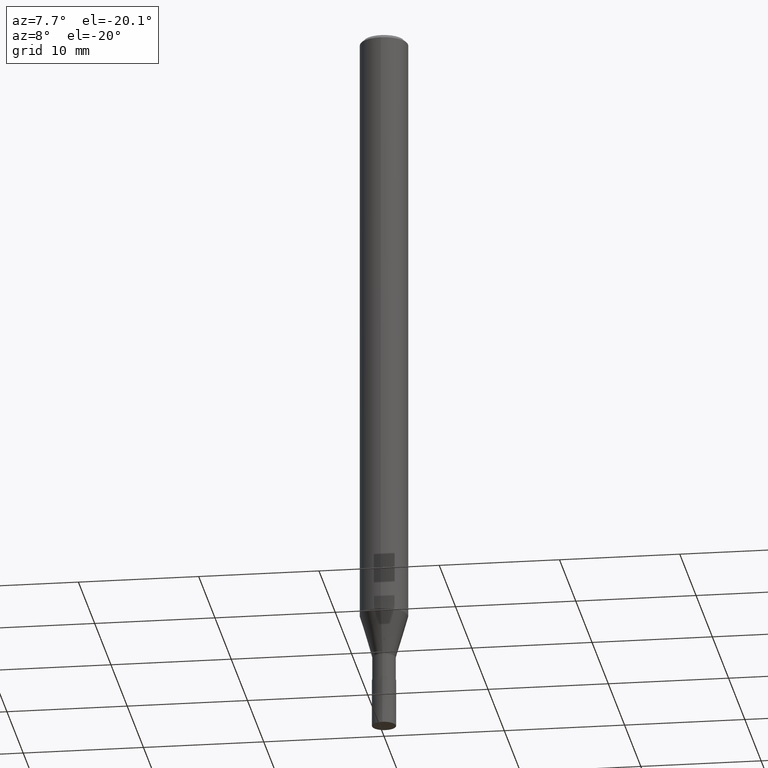
[diagram: clean part render]
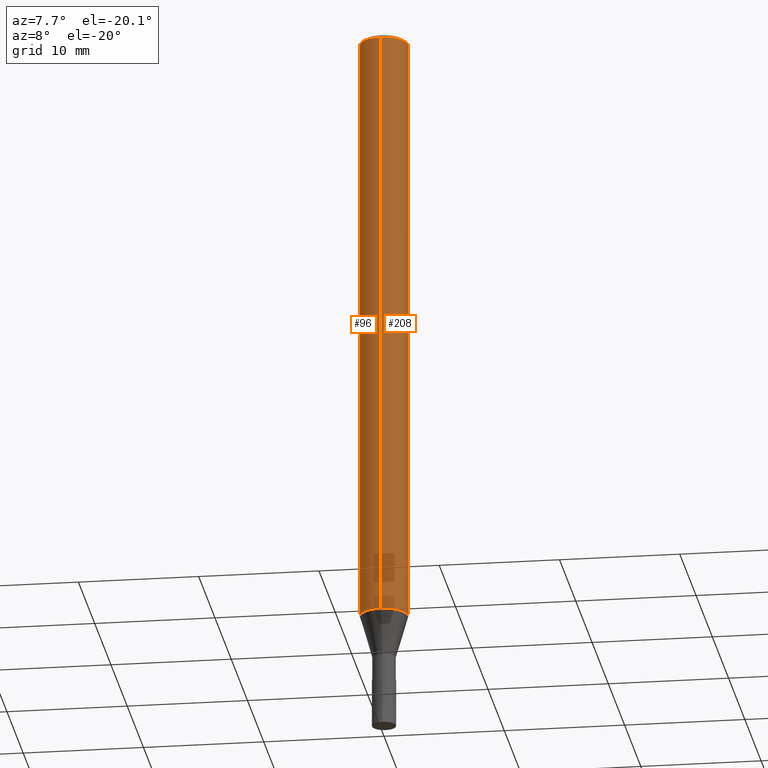
[diagram: same view with one multi-face feature highlighted, each face labeled with its STEP entity id]
A machine part, auxiliary view. The highlighted faces form ONE feature: a constant-radius fillet chain: 2 tangent blend faces with common blend radius 2 mm. The faces share edges in the B-rep.
Their STEP definitions:
[1] entity #96 (Cylinder):
#96=ADVANCED_FACE('',(#233),#234,.T.);
#98=VERTEX_POINT('',#236);
#100=VERTEX_POINT('',#238);
#104=EDGE_CURVE('',#190,#98,#242,.T.);
#114=EDGE_CURVE('',#100,#190,#256,.T.);
#128=VERTEX_POINT('',#271);
#148=EDGE_CURVE('',#128,#100,#293,.T.);
#190=VERTEX_POINT('',#338);
#200=EDGE_CURVE('',#128,#98,#350,.T.);
#233=FACE_OUTER_BOUND('',#379,.T.);
#234=CYLINDRICAL_SURFACE('',#380,2.0);
#236=CARTESIAN_POINT('',(0.0,2.0,-50.391));
#238=CARTESIAN_POINT('',(2.44921270764475E-016,-2.0,-0.299999999999997));
#242=LINE('',#389,#390);
#256=CIRCLE('',#407,2.0);
#271=CARTESIAN_POINT('',(2.44921270764475E-016,-2.0,-50.391));
#293=LINE('',#453,#454);
#338=CARTESIAN_POINT('',(0.0,2.0,-0.299999999999997));
#350=CIRCLE('',#528,2.0);
#379=EDGE_LOOP('',(#546,#547,#548,#549));
#380=AXIS2_PLACEMENT_3D('',#550,#551,#552);
#389=CARTESIAN_POINT('',(-2.44921270764475E-016,2.0,-25.3455));
#390=VECTOR('',#553,1.0);
#407=AXIS2_PLACEMENT_3D('',#575,#576,#577);
#453=CARTESIAN_POINT('',(2.44921270764475E-016,-2.0,-25.3455));
#454=VECTOR('',#619,1.0);
#528=AXIS2_PLACEMENT_3D('',#684,#685,#686);
#546=ORIENTED_EDGE('',*,*,#104,.T.);
#547=ORIENTED_EDGE('',*,*,#200,.F.);
#548=ORIENTED_EDGE('',*,*,#148,.T.);
#549=ORIENTED_EDGE('',*,*,#114,.T.);
#550=CARTESIAN_POINT('',(0.0,0.0,-25.3455));
#551=DIRECTION('',(-0.0,-0.0,1.0));
#552=DIRECTION('',(0.0,1.0,0.0));
#553=DIRECTION('',(0.0,0.0,-1.0));
#575=CARTESIAN_POINT('',(0.0,0.0,-0.299999999999997));
#576=DIRECTION('',(0.0,0.0,-1.0));
#577=DIRECTION('',(0.0,1.0,0.0));
#619=DIRECTION('',(-0.0,-0.0,1.0));
#684=CARTESIAN_POINT('',(0.0,0.0,-50.391));
#685=DIRECTION('',(0.0,0.0,-1.0));
#686=DIRECTION('',(0.0,1.0,0.0));
[2] entity #208 (Cylinder):
#92=EDGE_CURVE('',#190,#100,#229,.T.);
#98=VERTEX_POINT('',#236);
#100=VERTEX_POINT('',#238);
#104=EDGE_CURVE('',#190,#98,#242,.T.);
#128=VERTEX_POINT('',#271);
#148=EDGE_CURVE('',#128,#100,#293,.T.);
#190=VERTEX_POINT('',#338);
#202=EDGE_CURVE('',#98,#128,#352,.T.);
#208=ADVANCED_FACE('',(#360),#361,.T.);
#229=CIRCLE('',#375,2.0);
#236=CARTESIAN_POINT('',(0.0,2.0,-50.391));
#238=CARTESIAN_POINT('',(2.44921270764475E-016,-2.0,-0.299999999999997));
#242=LINE('',#389,#390);
#271=CARTESIAN_POINT('',(2.44921270764475E-016,-2.0,-50.391));
#293=LINE('',#453,#454);
#338=CARTESIAN_POINT('',(0.0,2.0,-0.299999999999997));
#352=CIRCLE('',#531,2.0);
#360=FACE_OUTER_BOUND('',#539,.T.);
#361=CYLINDRICAL_SURFACE('',#540,2.0);
#375=AXIS2_PLACEMENT_3D('',#542,#543,#544);
#389=CARTESIAN_POINT('',(-2.44921270764475E-016,2.0,-25.3455));
#390=VECTOR('',#553,1.0);
#453=CARTESIAN_POINT('',(2.44921270764475E-016,-2.0,-25.3455));
#454=VECTOR('',#619,1.0);
#531=AXIS2_PLACEMENT_3D('',#687,#688,#689);
#539=EDGE_LOOP('',(#707,#708,#709,#710));
#540=AXIS2_PLACEMENT_3D('',#711,#712,#713);
#542=CARTESIAN_POINT('',(0.0,0.0,-0.299999999999997));
#543=DIRECTION('',(0.0,0.0,-1.0));
#544=DIRECTION('',(0.0,1.0,0.0));
#553=DIRECTION('',(0.0,0.0,-1.0));
#619=DIRECTION('',(-0.0,-0.0,1.0));
#687=CARTESIAN_POINT('',(0.0,0.0,-50.391));
#688=DIRECTION('',(0.0,0.0,-1.0));
#689=DIRECTION('',(0.0,1.0,0.0));
#707=ORIENTED_EDGE('',*,*,#104,.F.);
#708=ORIENTED_EDGE('',*,*,#92,.T.);
#709=ORIENTED_EDGE('',*,*,#148,.F.);
#710=ORIENTED_EDGE('',*,*,#202,.F.);
#711=CARTESIAN_POINT('',(0.0,0.0,-25.3455));
#712=DIRECTION('',(-0.0,-0.0,1.0));
#713=DIRECTION('',(0.0,1.0,0.0));